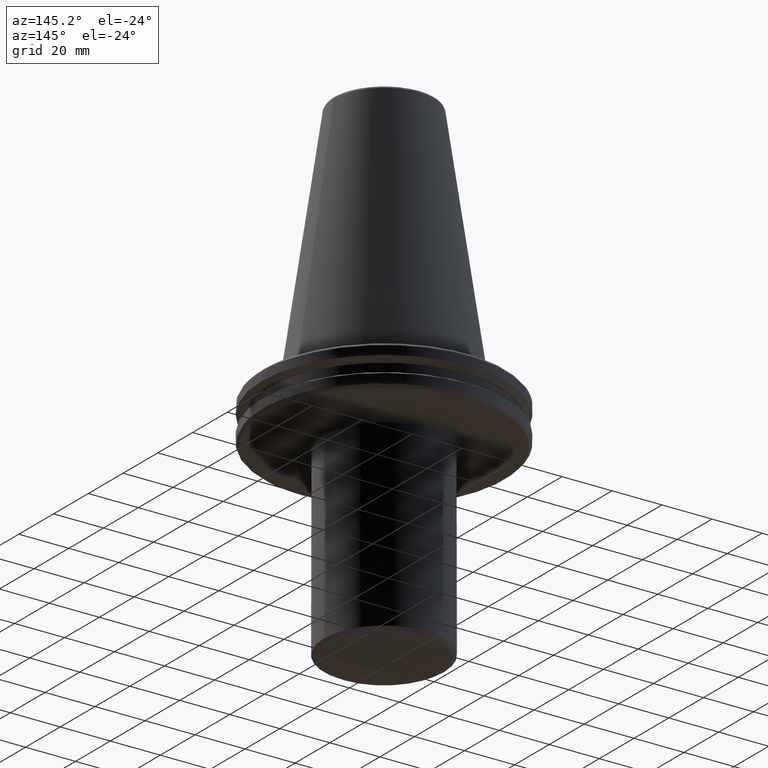
[diagram: clean part render]
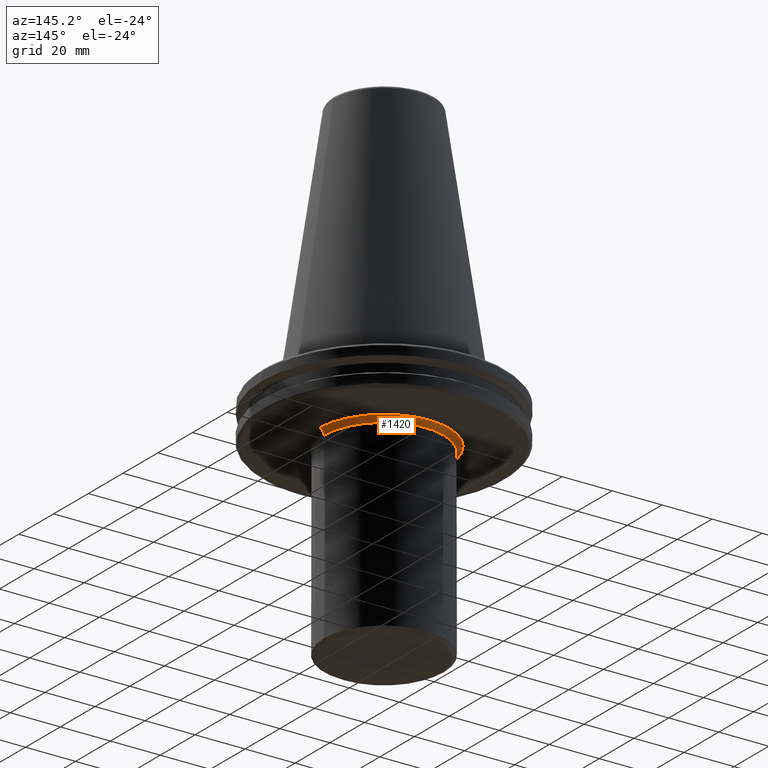
[diagram: same view with one face highlighted and labeled with its STEP entity id]
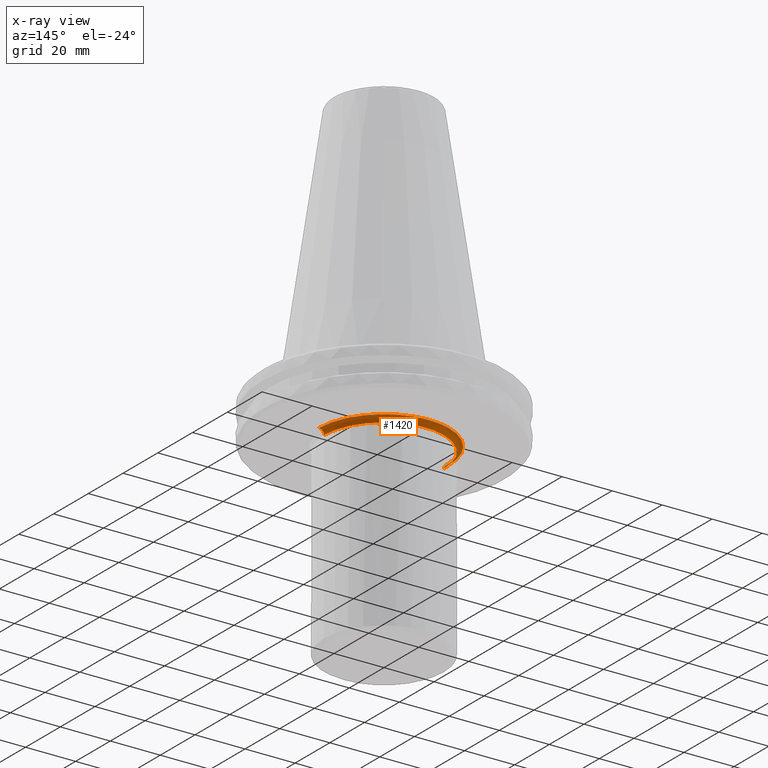
[diagram: x-ray of the same camera — body ghosted, the highlighted face saturated]
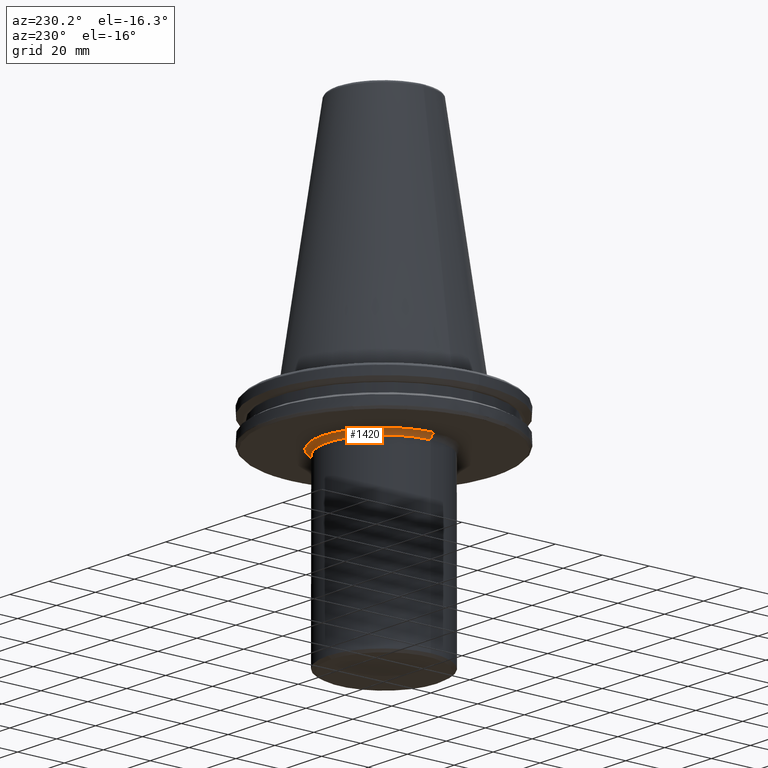
[diagram: same view with one face highlighted and labeled with its STEP entity id]
A machine part, auxiliary view. The second image highlights one B-rep face of the part: STEP entity #1420.
The next image is the same camera in x-ray: the body ghosted, the highlighted face saturated — about 1% of this face is hidden behind the body in this view.
A second angle (auxiliary view) of the same face is appended — the face is thin or edge-on in the first view.
In plain terms, the highlighted face is a freeform B-spline surface patch.
Its self-contained STEP definition (entity closure, byte-faithful):
#9 = CARTESIAN_POINT ( 'NONE',  ( -25.53182933316255200, 4.912293730350294000, -19.10000000000000500 ) ) ;
#11 = CARTESIAN_POINT ( 'NONE',  ( -25.49664686333754600, 5.093237319428173000, -19.10000000000000500 ) ) ;
#18 = CARTESIAN_POINT ( 'NONE',  ( -25.42306525121763300, 5.454192161913992400, -19.10000000000000100 ) ) ;
#22 = CARTESIAN_POINT ( 'NONE',  ( -25.26303533709827700, 6.172372504205887000, -19.10000000000000500 ) ) ;
#26 = CARTESIAN_POINT ( 'NONE',  ( -24.89150874934144000, 7.593815818070668300, -19.10000000000000900 ) ) ;
#32 = CARTESIAN_POINT ( 'NONE',  ( -24.48482865780448800, 8.786623165865046700, -19.10000000000000500 ) ) ;
#40 = CARTESIAN_POINT ( 'NONE',  ( -24.15510002573686100, 9.619452403780187000, -19.10000000000000900 ) ) ;
#42 = CARTESIAN_POINT ( 'NONE',  ( -24.13390533470555300, 9.672518291532702200, -19.10000000000000500 ) ) ;
#45 = CARTESIAN_POINT ( 'NONE',  ( -24.09285425758565000, 9.774334363304969700, -19.10000000000000100 ) ) ;
#48 = CARTESIAN_POINT ( 'NONE',  ( -24.03081705770352600, 9.926818699811638800, -19.10000000000000500 ) ) ;
#51 = CARTESIAN_POINT ( 'NONE',  ( -26.00000000000000700, 0.0000000000000000000, -19.10000000000000500 ) ) ;
#55 = CARTESIAN_POINT ( 'NONE',  ( -23.88283950189598300, 10.28093708693172400, -19.10000000000000500 ) ) ;
#56 = CARTESIAN_POINT ( 'NONE',  ( -23.57398803261721600, 10.98246026892338500, -19.10000000000000100 ) ) ;
#59 = CARTESIAN_POINT ( 'NONE',  ( -22.90469966340501500, 12.35865226391256900, -19.10000000000000100 ) ) ;
#61 = CARTESIAN_POINT ( 'NONE',  ( -22.24259175152940300, 13.49220934134198800, -19.10000000000000900 ) ) ;
#62 = CARTESIAN_POINT ( 'NONE',  ( -21.73183901294466100, 14.27340635343069100, -19.10000000000000100 ) ) ;
#66 = CARTESIAN_POINT ( 'NONE',  ( -21.70034169270702800, 14.32125343353973800, -19.10000000000000500 ) ) ;
#69 = CARTESIAN_POINT ( 'NONE',  ( -21.63838034151692500, 14.41471094785306300, -19.10000000000000500 ) ) ;
#71 = CARTESIAN_POINT ( 'NONE',  ( -21.54501856251954100, 14.55455488811033500, -19.09999999999999800 ) ) ;
#74 = CARTESIAN_POINT ( 'NONE',  ( -21.32423614604032700, 14.87846109688831800, -19.10000000000000500 ) ) ;
#75 = CARTESIAN_POINT ( 'NONE',  ( -20.87091825114033500, 15.51668824048838000, -19.10000000000000500 ) ) ;
#79 = CARTESIAN_POINT ( 'NONE',  ( -19.91727021357427000, 16.75480143186482000, -19.10000000000000500 ) ) ;
#85 = CARTESIAN_POINT ( 'NONE',  ( -19.01926518520435400, 17.75031371734690200, -19.10000000000000100 ) ) ;
#92 = CARTESIAN_POINT ( 'NONE',  ( -17.11579856214202500, 19.65370149785693600, -19.10000000000000900 ) ) ;
#94 = CARTESIAN_POINT ( 'NONE',  ( -15.72951935118698000, 20.77990877389524400, -19.10000000000000500 ) ) ;
#100 = CARTESIAN_POINT ( 'NONE',  ( -14.18051403291453700, 21.79256999536587700, -19.10000000000000500 ) ) ;
#101 = CARTESIAN_POINT ( 'NONE',  ( -14.13542969947152600, 21.82183815495291100, -19.10000000000000900 ) ) ;
#104 = CARTESIAN_POINT ( 'NONE',  ( -14.04316786996765900, 21.88133148954932100, -19.10000000000000500 ) ) ;
#105 = CARTESIAN_POINT ( 'NONE',  ( -13.90453718475016800, 21.97010996277238300, -19.10000000000000100 ) ) ;
#108 = CARTESIAN_POINT ( 'NONE',  ( -13.57939999917757000, 22.17402903292536500, -19.10000000000000900 ) ) ;
#111 = CARTESIAN_POINT ( 'NONE',  ( -12.92246328110510400, 22.56894437042785700, -19.10000000000000500 ) ) ;
#113 = CARTESIAN_POINT ( 'NONE',  ( -11.58194045725128500, 23.30708383421902900, -19.10000000000000500 ) ) ;
#116 = CARTESIAN_POINT ( 'NONE',  ( -10.38723622930410400, 23.85116129824497500, -19.10000000000000900 ) ) ;
#120 = CARTESIAN_POINT ( 'NONE',  ( -9.519414087315238900, 24.19470423570932400, -19.10000000000000100 ) ) ;
#122 = CARTESIAN_POINT ( 'NONE',  ( -9.472396760747198400, 24.21314620663746800, -19.10000000000000500 ) ) ;
#124 = CARTESIAN_POINT ( 'NONE',  ( -9.374199852579604200, 24.25133649195979800, -19.10000000000000500 ) ) ;
#127 = CARTESIAN_POINT ( 'NONE',  ( -9.226773270022118100, 24.30816182625133600, -19.10000000000000100 ) ) ;
#130 = CARTESIAN_POINT ( 'NONE',  ( -8.881859368578679100, 24.43753361708805000, -19.10000000000000500 ) ) ;
#134 = CARTESIAN_POINT ( 'NONE',  ( -8.188357397121219300, 24.68339457538708000, -19.10000000000000500 ) ) ;
#137 = CARTESIAN_POINT ( 'NONE',  ( -6.786656779923987400, 25.12358599848766300, -19.09999999999999800 ) ) ;
#139 = CARTESIAN_POINT ( 'NONE',  ( -5.560004809270978400, 25.41255494372105200, -19.10000000000000900 ) ) ;
#141 = CARTESIAN_POINT ( 'NONE',  ( -4.705134192510913100, 25.57073284867812600, -19.10000000000000100 ) ) ;
#147 = CARTESIAN_POINT ( 'NONE',  ( -4.682158347204554300, 25.57494818588518700, -19.10000000000000100 ) ) ;
#154 = CARTESIAN_POINT ( 'NONE',  ( -4.633267867649633900, 25.58385079740399300, -19.09999999999999800 ) ) ;
#158 = CARTESIAN_POINT ( 'NONE',  ( -4.559922684273546500, 25.59709871914677100, -19.10000000000000500 ) ) ;
#163 = CARTESIAN_POINT ( 'NONE',  ( -4.388717674756703600, 25.62726856779846700, -19.10000000000000900 ) ) ;
#168 = CARTESIAN_POINT ( 'NONE',  ( -4.046042662499103500, 25.68464039010945800, -19.10000000000000500 ) ) ;
#172 = CARTESIAN_POINT ( 'NONE',  ( -3.359632665088341700, 25.78751253476187300, -19.10000000000000900 ) ) ;
#178 = CARTESIAN_POINT ( 'NONE',  ( -1.982572778684461400, 25.94577082418838600, -19.10000000000000500 ) ) ;
#179 = CARTESIAN_POINT ( 'NONE',  ( -0.7949673476257092000, 26.00001621533401400, -19.10000000000000900 ) ) ;
#182 = CARTESIAN_POINT ( 'NONE',  ( 1.589934695251411300, 25.99996756933200000, -19.10000000000000500 ) ) ;
#184 = CARTESIAN_POINT ( 'NONE',  ( 3.167653936878935800, 25.85528074787255200, -19.10000000000000900 ) ) ;
#186 = CARTESIAN_POINT ( 'NONE',  ( 4.755467259994475200, 25.56141862306466800, -19.10000000000000900 ) ) ;
#188 = CARTESIAN_POINT ( 'NONE',  ( 4.782859622600342100, 25.55630867551359800, -19.10000000000000500 ) ) ;
#189 = CARTESIAN_POINT ( 'NONE',  ( 4.834646584782392500, 25.54656289103661100, -19.10000000000000900 ) ) ;
#191 = CARTESIAN_POINT ( 'NONE',  ( 4.912293730352950600, 25.53182933316151400, -19.10000000000000100 ) ) ;
#197 = CARTESIAN_POINT ( 'NONE',  ( 5.093237319433305800, 25.49664686333550600, -19.09999999999999800 ) ) ;
#202 = CARTESIAN_POINT ( 'NONE',  ( 5.454192161923581100, 25.42306525121384900, -19.10000000000000500 ) ) ;
#207 = CARTESIAN_POINT ( 'NONE',  ( 6.172372504222311200, 25.26303533709177200, -19.10000000000000500 ) ) ;
#209 = CARTESIAN_POINT ( 'NONE',  ( 7.593815818092556600, 24.89150874933277200, -19.10000000000000500 ) ) ;
#212 = CARTESIAN_POINT ( 'NONE',  ( 8.786623165877546900, 24.48482865779955000, -19.10000000000001200 ) ) ;
#215 = CARTESIAN_POINT ( 'NONE',  ( 9.619452403779403600, 24.15510002573717000, -19.09999999999999800 ) ) ;
#216 = CARTESIAN_POINT ( 'NONE',  ( 9.672518291530421300, 24.13390533470645100, -19.10000000000000100 ) ) ;
#217 = CARTESIAN_POINT ( 'NONE',  ( 9.774334363300514600, 24.09285425758741900, -19.10000000000000500 ) ) ;
#222 = CARTESIAN_POINT ( 'NONE',  ( 9.926818699804027100, 24.03081705770654300, -19.10000000000000100 ) ) ;
#228 = EDGE_CURVE ( 'NONE', #1043, #1484, #2931, .T. ) ;
#229 = CARTESIAN_POINT ( 'NONE',  ( 10.28093708691752000, 23.88283950190161100, -19.10000000000000500 ) ) ;
#234 = CARTESIAN_POINT ( 'NONE',  ( 10.98246026889901800, 23.57398803262688200, -19.10000000000000900 ) ) ;
#239 = CARTESIAN_POINT ( 'NONE',  ( 12.35865226388009800, 22.90469966341788000, -19.10000000000000900 ) ) ;
#242 = CARTESIAN_POINT ( 'NONE',  ( 13.49220934132342500, 22.24259175153674700, -19.10000000000001200 ) ) ;
#253 = CARTESIAN_POINT ( 'NONE',  ( 14.27340635343185200, 21.73183901294420700, -19.10000000000000500 ) ) ;
#254 = CARTESIAN_POINT ( 'NONE',  ( 14.32125343353594400, 21.70034169271010800, -19.09999999999999800 ) ) ;
#258 = CARTESIAN_POINT ( 'NONE',  ( 14.41471094784565400, 21.63838034152293200, -19.10000000000000500 ) ) ;
#262 = CARTESIAN_POINT ( 'NONE',  ( 14.55455488809768700, 21.54501856252983000, -19.10000000000000500 ) ) ;
#267 = CARTESIAN_POINT ( 'NONE',  ( 14.87846109686471200, 21.32423614605949800, -19.10000000000000500 ) ) ;
#268 = CARTESIAN_POINT ( 'NONE',  ( 15.51668824044791400, 20.87091825117321200, -19.10000000000000500 ) ) ;
#278 = CARTESIAN_POINT ( 'NONE',  ( 16.75480143181085100, 19.91727021361812400, -19.10000000000000900 ) ) ;
#282 = CARTESIAN_POINT ( 'NONE',  ( -26.00000000000000700, 0.0000000000000000000, -19.10000000000000500 ) ) ;
#287 = CARTESIAN_POINT ( 'NONE',  ( 17.75031371731607200, 19.01926518522941500, -19.10000000000001200 ) ) ;
#291 = ORIENTED_EDGE ( 'NONE', *, *, #228, .T. ) ;
#292 = CARTESIAN_POINT ( 'NONE',  ( 19.65370149791861500, 17.11579856209190700, -19.10000000000000500 ) ) ;
#294 = CARTESIAN_POINT ( 'NONE',  ( 20.77990877390448100, 15.72951935118932100, -19.10000000000001200 ) ) ;
#297 = CARTESIAN_POINT ( 'NONE',  ( 21.79256999536558200, 14.18051403291446800, -19.10000000000000500 ) ) ;
#302 = CARTESIAN_POINT ( 'NONE',  ( 21.82183815495503500, 14.13542969946727400, -19.10000000000000100 ) ) ;
#305 = CARTESIAN_POINT ( 'NONE',  ( 21.88133148955348500, 14.04316786995936500, -19.10000000000000500 ) ) ;
#306 = CARTESIAN_POINT ( 'NONE',  ( 21.97010996277948900, 13.90453718473601300, -19.10000000000000500 ) ) ;
#309 = CARTESIAN_POINT ( 'NONE',  ( 22.17402903293860600, 13.57939999915113000, -19.10000000000000500 ) ) ;
#312 = CARTESIAN_POINT ( 'NONE',  ( 22.56894437045057000, 12.92246328105980000, -19.10000000000000900 ) ) ;
#318 = CARTESIAN_POINT ( 'NONE',  ( 23.30708383424930800, 11.58194045719085400, -19.10000000000000500 ) ) ;
#320 = CARTESIAN_POINT ( 'NONE',  ( 23.85116129826227600, 10.38723622926957200, -19.09999999999999800 ) ) ;
#323 = CARTESIAN_POINT ( 'NONE',  ( 24.19470423570825100, 9.519414087317391800, -19.10000000000000100 ) ) ;
#328 = CARTESIAN_POINT ( 'NONE',  ( 24.21314620663857700, 9.472396760743322400, -19.10000000000000900 ) ) ;
#331 = CARTESIAN_POINT ( 'NONE',  ( 24.25133649196196500, 9.374199852572035100, -19.10000000000000500 ) ) ;
#340 = AXIS2_PLACEMENT_3D ( 'NONE', #2426, #2326, #2240 ) ;
#342 = CARTESIAN_POINT ( 'NONE',  ( 24.30816182625503800, 9.226773270009196900, -19.10000000000000500 ) ) ;
#344 = CARTESIAN_POINT ( 'NONE',  ( 24.43753361709493200, 8.881859368554568600, -19.10000000000000900 ) ) ;
#346 = CARTESIAN_POINT ( 'NONE',  ( 24.68339457539887500, 8.188357397079881700, -19.10000000000000500 ) ) ;
#349 = CARTESIAN_POINT ( 'NONE',  ( 25.12358599850338700, 6.786656779868874200, -19.10000000000000900 ) ) ;
#352 = CARTESIAN_POINT ( 'NONE',  ( 25.41255494373002900, 5.560004809239478300, -19.10000000000000100 ) ) ;
#364 = CARTESIAN_POINT ( 'NONE',  ( 25.57073284867784200, 4.705134192511904300, -19.10000000000000500 ) ) ;
#367 = CARTESIAN_POINT ( 'NONE',  ( 25.57494718034444900, 4.682163781636559100, -19.10000000000000500 ) ) ;
#370 = CARTESIAN_POINT ( 'NONE',  ( 25.58384881007546200, 4.633278608141228700, -19.10000000000000500 ) ) ;
#378 = CARTESIAN_POINT ( 'NONE',  ( 25.59709528288945900, 4.559941255482106800, -19.10000000000000500 ) ) ;
#379 = CARTESIAN_POINT ( 'NONE',  ( 25.62726191697787900, 4.388753619031328800, -19.10000000000001200 ) ) ;
#384 = CARTESIAN_POINT ( 'NONE',  ( 25.68462797524436100, 4.046109758478410300, -19.10000000000001200 ) ) ;
#385 = CARTESIAN_POINT ( 'NONE',  ( 25.78749125213599000, 3.359747686767132100, -19.10000000000000500 ) ) ;
#388 = CARTESIAN_POINT ( 'NONE',  ( 25.94574244735386500, 1.982726140922852000, -19.10000000000000500 ) ) ;
#394 = CARTESIAN_POINT ( 'NONE',  ( 26.00000000000001100, 0.7950549831905049400, -19.10000000000000500 ) ) ;
#403 = CARTESIAN_POINT ( 'NONE',  ( 26.00000000000000700, 3.184081677783118600E-015, -19.10000000000000500 ) ) ;
#428 = CARTESIAN_POINT ( 'NONE',  ( 24.00000000000000700, 0.0000000000000000000, -21.10000000000000900 ) ) ;
#441 = CARTESIAN_POINT ( 'NONE',  ( 24.00000000000000700, 2.939152317953648700E-015, -21.10000000000000900 ) ) ;
#443 = CARTESIAN_POINT ( 'NONE',  ( 24.00000000000000000, 48.00000000000000000, -21.10000000000000900 ) ) ;
#446 = CARTESIAN_POINT ( 'NONE',  ( -25.55630867551390400, 4.782859622599562300, -19.10000000000001200 ) ) ;
#447 = CARTESIAN_POINT ( 'NONE',  ( -24.00000000000001100, 48.00000000000000000, -21.10000000000000900 ) ) ;
#451 = CARTESIAN_POINT ( 'NONE',  ( -24.00000000000000700, 0.0000000000000000000, -21.10000000000000900 ) ) ;
#459 = CARTESIAN_POINT ( 'NONE',  ( 24.00000000000001100, 2.939152317953648700E-015, -19.92842712474619700 ) ) ;
#465 = CARTESIAN_POINT ( 'NONE',  ( 24.00000000000000000, 48.00000000000000000, -19.92842712474619700 ) ) ;
#470 = CARTESIAN_POINT ( 'NONE',  ( -24.00000000000000400, 48.00000000000000000, -19.92842712474619700 ) ) ;
#473 = CARTESIAN_POINT ( 'NONE',  ( -24.00000000000001100, 0.0000000000000000000, -19.92842712474619700 ) ) ;
#477 = CARTESIAN_POINT ( 'NONE',  ( 24.82842712474619900, 3.040605380618375800E-015, -19.10000000000000500 ) ) ;
#484 = CARTESIAN_POINT ( 'NONE',  ( 24.82842712474618800, 49.65685424949237600, -19.10000000000000100 ) ) ;
#487 = CARTESIAN_POINT ( 'NONE',  ( -24.82842712474619500, 49.65685424949237600, -19.10000000000000100 ) ) ;
#489 = CARTESIAN_POINT ( 'NONE',  ( -24.82842712474619900, 0.0000000000000000000, -19.10000000000000500 ) ) ;
#493 = CARTESIAN_POINT ( 'NONE',  ( 26.00000000000000700, 3.184081677783119000E-015, -19.10000000000000500 ) ) ;
#494 = CARTESIAN_POINT ( 'NONE',  ( 25.99999999999999600, 51.99999999999999300, -19.10000000000000900 ) ) ;
#511 = CARTESIAN_POINT ( 'NONE',  ( -26.00000000000000700, 0.0000000000000000000, -19.10000000000000500 ) ) ;
#519 = CARTESIAN_POINT ( 'NONE',  ( -26.00000000000000700, 51.99999999999999300, -19.10000000000000900 ) ) ;
#656 = ORIENTED_EDGE ( 'NONE', *, *, #729, .F. ) ;
#667 = ORIENTED_EDGE ( 'NONE', *, *, #1456, .F. ) ;
#729 = EDGE_CURVE ( 'NONE', #1869, #1488, #1717, .T. ) ;
#744 = ORIENTED_EDGE ( 'NONE', *, *, #932, .F. ) ;
#930 = CARTESIAN_POINT ( 'NONE',  ( 26.00000000000000700, 3.184081677783118600E-015, -19.10000000000000500 ) ) ;
#932 = EDGE_CURVE ( 'NONE', #1488, #1484, #3027, .T. ) ;
#1010 = DIRECTION ( 'NONE',  ( -1.000000000000000000, 0.0000000000000000000, 0.0000000000000000000 ) ) ;
#1014 = DIRECTION ( 'NONE',  ( 0.0000000000000000000, 0.0000000000000000000, -1.000000000000000000 ) ) ;
#1018 = CARTESIAN_POINT ( 'NONE',  ( 0.0000000000000000000, 0.0000000000000000000, -21.10000000000000900 ) ) ;
#1043 = VERTEX_POINT ( 'NONE', #930 ) ;
#1149 = CARTESIAN_POINT ( 'NONE',  ( -24.00000000000000700, 2.939152317953648700E-015, -21.10000000000000900 ) ) ;
#1259 = DIRECTION ( 'NONE',  ( 0.0000000000000000000, 1.000000000000000000, 0.0000000000000000000 ) ) ;
#1264 = CARTESIAN_POINT ( 'NONE',  ( -26.00000000000000700, 0.0000000000000000000, -21.10000000000000900 ) ) ;
#1274 = DIRECTION ( 'NONE',  ( -1.000000000000000000, 0.0000000000000000000, 0.0000000000000000000 ) ) ;
#1420 = ADVANCED_FACE ( 'NONE', ( #2527 ), #2924, .F. ) ;
#1456 = EDGE_CURVE ( 'NONE', #1043, #1869, #2289, .T. ) ;
#1484 = VERTEX_POINT ( 'NONE', #428 ) ;
#1488 = VERTEX_POINT ( 'NONE', #1149 ) ;
#1493 = CARTESIAN_POINT ( 'NONE',  ( -25.54656289103721500, 4.834646584780852400, -19.10000000000000500 ) ) ;
#1557 = EDGE_LOOP ( 'NONE', ( #667, #291, #744, #656 ) ) ;
#1717 = CIRCLE ( 'NONE', #2512, 1.999999999999998200 ) ;
#1869 = VERTEX_POINT ( 'NONE', #51 ) ;
#2211 = AXIS2_PLACEMENT_3D ( 'NONE', #1018, #1014, #1010 ) ;
#2240 = DIRECTION ( 'NONE',  ( 1.000000000000000000, 1.224646799147353500E-016, 0.0000000000000000000 ) ) ;
#2289 = B_SPLINE_CURVE_WITH_KNOTS ( 'NONE', 3,
 ( #403, #394, #388, #385, #384, #379, #378, #370, #367, #364, #352, #349, #346, #344, #342, #331, #328, #323, #320, #318, #312, #309, #306, #305, #302, #297, #294, #292, #287, #278, #268, #267, #262, #258, #254, #253, #242, #239, #234, #229, #222, #217, #216, #215, #212, #209, #207, #202, #197, #191, #189, #188, #186, #184, #182, #179, #178, #172, #168, #163, #158, #154, #147, #141, #139, #137, #134, #130, #127, #124, #122, #120, #116, #113, #111, #108, #105, #104, #101, #100, #94, #92, #85, #79, #75, #74, #71, #69, #66, #62, #61, #59, #56, #55, #48, #45, #42, #40, #32, #26, #22, #18, #11, #9, #1493, #446, #3033, #2596, #2850, #282 ),
 .UNSPECIFIED., .F., .F.,
 ( 4, 1, 1, 1, 1, 1, 2, 2, 1, 1, 1, 1, 2, 2, 1, 1, 1, 1, 2, 2, 2, 1, 1, 1, 1, 2, 2, 1, 1, 1, 1, 2, 2, 1, 1, 1, 1, 1, 2, 2, 2, 1, 1, 1, 1, 1, 2, 2, 1, 1, 1, 1, 2, 2, 1, 1, 1, 1, 2, 2, 2, 1, 1, 1, 1, 2, 2, 1, 1, 1, 1, 2, 2, 1, 1, 1, 1, 1, 2, 2, 4 ),
 ( 0.0000000000000000000, 0.03125000000000257400, 0.04687500000000385100, 0.05468750000000448900, 0.05859375000000481600, 0.06054687500000496100, 0.06152343750000501700, 0.06250000000000507900, 0.09375000000000618900, 0.1093750000000067300, 0.1171875000000069700, 0.1210937500000070500, 0.1230468750000070500, 0.1250000000000070500, 0.1562500000000072400, 0.1718750000000073000, 0.1796875000000073300, 0.1835937500000073600, 0.1855468750000073300, 0.1875000000000072700, 0.2500000000000068800, 0.2812500000000066100, 0.2968750000000066100, 0.3046875000000065500, 0.3085937500000064900, 0.3105468750000064400, 0.3125000000000063800, 0.3437500000000064400, 0.3593750000000064900, 0.3671875000000065500, 0.3710937500000065500, 0.3730468750000065500, 0.3750000000000064900, 0.4062500000000068800, 0.4218750000000071100, 0.4296875000000072200, 0.4335937500000072200, 0.4355468750000072700, 0.4365234375000073300, 0.4375000000000073300, 0.5000000000000066600, 0.5312500000000063300, 0.5468750000000062200, 0.5546875000000062200, 0.5585937500000061100, 0.5605468750000062200, 0.5615234375000062200, 0.5625000000000061100, 0.5937500000000053300, 0.6093750000000048800, 0.6171875000000046600, 0.6210937500000045500, 0.6230468750000044400, 0.6250000000000044400, 0.6562500000000035500, 0.6718750000000032200, 0.6796875000000030000, 0.6835937500000030000, 0.6855468750000031100, 0.6875000000000031100, 0.7500000000000038900, 0.7812500000000043300, 0.7968750000000044400, 0.8046875000000045500, 0.8085937500000046600, 0.8105468750000046600, 0.8125000000000047700, 0.8437500000000050000, 0.8593750000000051100, 0.8671875000000051100, 0.8710937500000051100, 0.8730468750000051100, 0.8750000000000050000, 0.9062500000000043300, 0.9218750000000041100, 0.9296875000000040000, 0.9335937500000038900, 0.9355468750000037700, 0.9365234375000037700, 0.9375000000000037700, 1.000000000000000000 ),
 .UNSPECIFIED. ) ;
#2326 = DIRECTION ( 'NONE',  ( 1.224646799147353200E-016, -1.000000000000000000, 0.0000000000000000000 ) ) ;
#2426 = CARTESIAN_POINT ( 'NONE',  ( 26.00000000000000700, 3.184081677783119000E-015, -21.10000000000000900 ) ) ;
#2512 = AXIS2_PLACEMENT_3D ( 'NONE', #1264, #1259, #1274 ) ;
#2527 = FACE_OUTER_BOUND ( 'NONE', #1557, .T. ) ;
#2596 = CARTESIAN_POINT ( 'NONE',  ( -25.85531319294364700, 3.167478627712783100, -19.10000000000000100 ) ) ;
#2850 = CARTESIAN_POINT ( 'NONE',  ( -26.00000000000000000, 1.590465506807545900, -19.10000000000000100 ) ) ;
#2924 =( BOUNDED_SURFACE ( )  B_SPLINE_SURFACE ( 3, 3, ( 
 ( #511, #519, #494, #493 ),
 ( #489, #487, #484, #477 ),
 ( #473, #470, #465, #459 ),
 ( #451, #447, #443, #441 ) ),
 .UNSPECIFIED., .F., .F., .F. ) 
 B_SPLINE_SURFACE_WITH_KNOTS ( ( 4, 4 ),
 ( 4, 4 ),
 ( 0.0000000000000000000, 1.000000000000000000 ),
 ( 0.0000000000000000000, 1.000000000000000000 ),
 .UNSPECIFIED. ) 
 GEOMETRIC_REPRESENTATION_ITEM ( )  RATIONAL_B_SPLINE_SURFACE ( (
 ( 1.000000000000000000, 0.3333333333333334300, 0.3333333333333334300, 1.000000000000000000),
 ( 0.8047378541243649400, 0.2682459513747884100, 0.2682459513747884100, 0.8047378541243649400),
 ( 0.8047378541243649400, 0.2682459513747884100, 0.2682459513747884100, 0.8047378541243649400),
 ( 1.000000000000000000, 0.3333333333333334300, 0.3333333333333334300, 1.000000000000000000) ) ) 
 REPRESENTATION_ITEM ( '' )  SURFACE ( )  );
#2931 = CIRCLE ( 'NONE', #340, 1.999999999999998200 ) ;
#3027 = CIRCLE ( 'NONE', #2211, 24.00000000000000700 ) ;
#3033 = CARTESIAN_POINT ( 'NONE',  ( -25.56141811611042400, 4.755469999200194300, -19.10000000000000500 ) ) ;